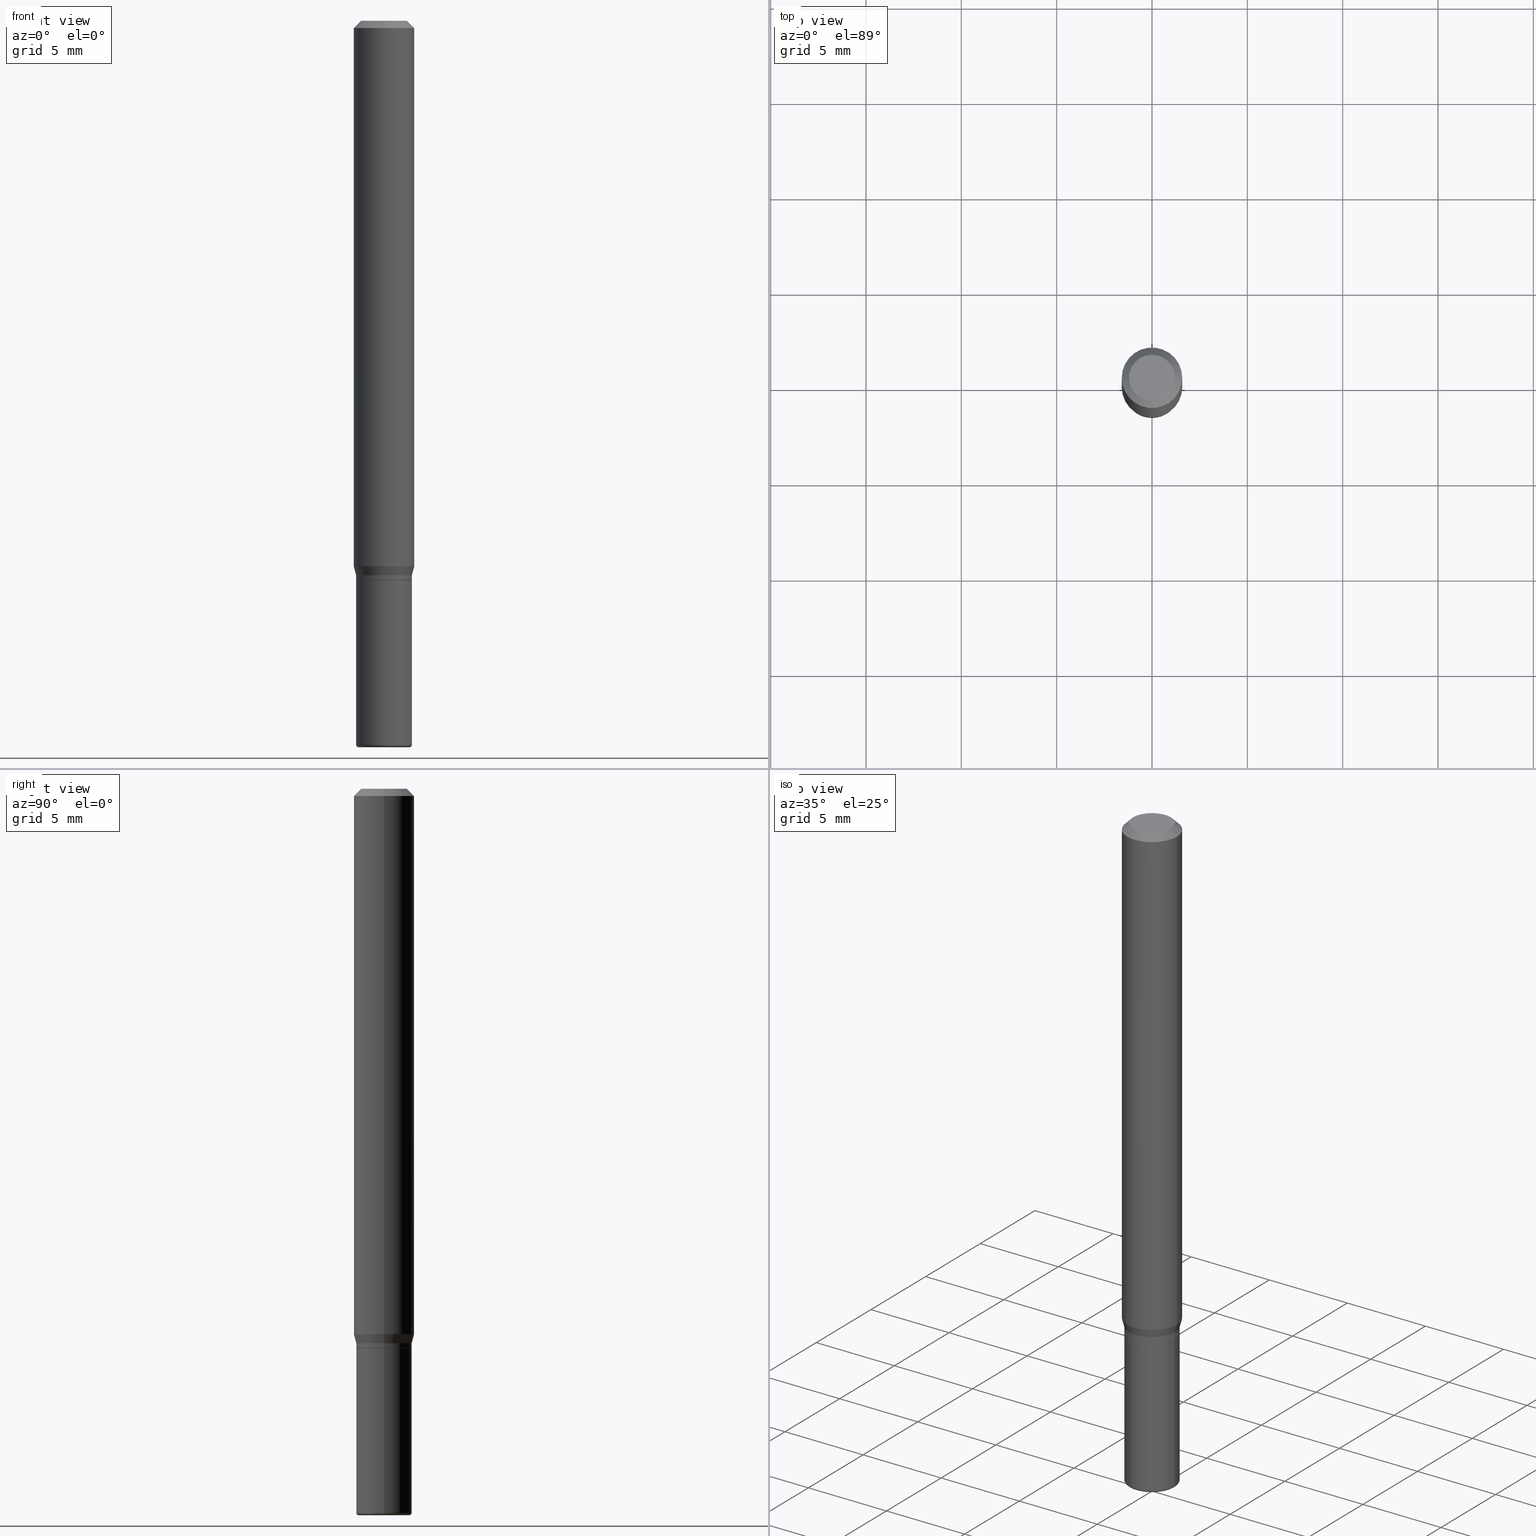
[diagram: canonical four-view strip — front | top / right | iso, engineering-drawing reading convention]
A machine part, canonical four-view strip (front | top / right | iso — engineering-drawing reading convention). The complete STEP part file that produces these views, byte-faithful:
ISO-10303-21;
HEADER;
FILE_DESCRIPTION (( 'STEP AP203' ),
    '1' );
FILE_NAME ('09247.STEP',
    '2024-02-29T23:57:34',
    ( '' ),
    ( '' ),
    'SwSTEP 2.0',
    'SolidWorks 2023',
    '' );
FILE_SCHEMA (( 'CONFIG_CONTROL_DESIGN' ));
ENDSEC;

DATA;
#1 = CARTESIAN_POINT ( 'NONE',  ( 0.000000000000000000, 0.000000000000000000, 0.000000000000000000 ) ) ;
#2 = DIRECTION ( 'NONE',  ( 1.000000000000000000, 0.000000000000000000, 0.000000000000000000 ) ) ;
#3 = CIRCLE ( 'NONE', #64, 0.05750000000000000250 ) ;
#4 = DIRECTION ( 'NONE',  ( 2.438088387897960049E-29, -3.491481338843145188E-15, -1.000000000000000000 ) ) ;
#5 = DIRECTION ( 'NONE',  ( -1.000000000000000000, 6.982962677686266711E-15, 0.000000000000000000 ) ) ;
#6 = EDGE_LOOP ( 'NONE', ( #207, #223, #396, #106 ) ) ;
#7 = DIRECTION ( 'NONE',  ( -0.2588190451025201844, 5.211531920934542364E-15, 0.9659258262890684232 ) ) ;
#8 = EDGE_LOOP ( 'NONE', ( #436, #42, #502, #92 ) ) ;
#9 = ADVANCED_FACE ( 'NONE', ( #291 ), #194, .T. ) ;
#10 = CARTESIAN_POINT ( 'NONE',  ( 2.824516471143833307E-29, -4.032660946363833383E-15, -1.155000000000000027 ) ) ;
#11 = PERSON_AND_ORGANIZATION_ROLE ( 'creator' ) ;
#12 = CARTESIAN_POINT ( 'NONE',  ( 2.823293736740741066E-29, -4.030915205694411879E-15, -1.154500000000000304 ) ) ;
#13 = DIRECTION ( 'NONE',  ( 1.000000000000000000, -6.982962677686268288E-15, 4.883557194083113462E-29 ) ) ;
#14 = DIRECTION ( 'NONE',  ( -2.445468806185136597E-29, 3.491481338843145583E-15, 1.000000000000000000 ) ) ;
#15 = AXIS2_PLACEMENT_3D ( 'NONE', #337, #335, #13 ) ;
#16 = AXIS2_PLACEMENT_3D ( 'NONE', #409, #14, #127 ) ;
#17 = DIRECTION ( 'NONE',  ( 2.438088387897960049E-29, -3.491481338843145188E-15, -1.000000000000000000 ) ) ;
#18 = DIRECTION ( 'NONE',  ( 1.000000000000000000, -6.982962677686271444E-15, 0.000000000000000000 ) ) ;
#19 = ORIENTED_EDGE ( 'NONE', *, *, #305, .F. ) ;
#20 = ORIENTED_EDGE ( 'NONE', *, *, #377, .T. ) ;
#21 = DIRECTION ( 'NONE',  ( 2.445468806185136597E-29, -3.491481338843145583E-15, -1.000000000000000000 ) ) ;
#22 = DIRECTION ( 'NONE',  ( -2.445468806185136597E-29, 3.491481338843145583E-15, 1.000000000000000000 ) ) ;
#23 = VECTOR ( 'NONE', #89, 39.37007874015748143 ) ;
#24 = CARTESIAN_POINT ( 'NONE',  ( 3.668203209277706016E-29, -5.237222008264719754E-15, -1.500000000000000444 ) ) ;
#25 = EDGE_CURVE ( 'NONE', #54, #464, #175, .T. ) ;
#26 = CONICAL_SURFACE ( 'NONE', #185, 0.05700000000000008532, 0.7853981633975507526 ) ;
#27 = CIRCLE ( 'NONE', #382, 0.05700000000000008532 ) ;
#28 = ORIENTED_EDGE ( 'NONE', *, *, #149, .F. ) ;
#29 = ORIENTED_EDGE ( 'NONE', *, *, #25, .F. ) ;
#30 = DIRECTION ( 'NONE',  ( -2.438088387897960049E-29, 3.491481338843145188E-15, 1.000000000000000000 ) ) ;
#31 = PERSON_AND_ORGANIZATION_ROLE ( 'classification_officer' ) ;
#32 = AXIS2_PLACEMENT_3D ( 'NONE', #452, #17, #51 ) ;
#33 = LOCAL_TIME ( 18, 57, 34.00000000000000000, #170 ) ;
#34 = ORIENTED_EDGE ( 'NONE', *, *, #70, .F. ) ;
#35 =( LENGTH_UNIT ( ) NAMED_UNIT ( * ) SI_UNIT ( $, .METRE. ) );
#36 = CARTESIAN_POINT ( 'NONE',  ( -0.05750000000000005801, -3.589184059913344947E-15, -1.145000000000000462 ) ) ;
#37 = PERSON_AND_ORGANIZATION ( #234, #84 ) ;
#38 = DIRECTION ( 'NONE',  ( -2.438088387897960049E-29, 3.491481338843145188E-15, 1.000000000000000000 ) ) ;
#39 = DIRECTION ( 'NONE',  ( -2.445468806185136597E-29, 3.491481338843145583E-15, 1.000000000000000000 ) ) ;
#40 = EDGE_CURVE ( 'NONE', #399, #308, #246, .T. ) ;
#41 =( NAMED_UNIT ( * ) SI_UNIT ( $, .STERADIAN. ) SOLID_ANGLE_UNIT ( ) );
#42 = ORIENTED_EDGE ( 'NONE', *, *, #187, .F. ) ;
#43 = CLOSED_SHELL ( 'NONE', ( #9, #492, #93, #505, #265, #261 ) ) ;
#44 = AXIS2_PLACEMENT_3D ( 'NONE', #378, #101, #375 ) ;
#45 = CARTESIAN_POINT ( 'NONE',  ( 0.000000000000000000, 0.000000000000000000, 0.000000000000000000 ) ) ;
#46 = DATE_AND_TIME ( #120, #33 ) ;
#47 = EDGE_LOOP ( 'NONE', ( #180, #507, #231, #79 ) ) ;
#48 = DIRECTION ( 'NONE',  ( 1.000000000000000000, -6.982962677686266711E-15, 0.000000000000000000 ) ) ;
#49 = DIRECTION ( 'NONE',  ( -2.445468806185136597E-29, 3.491481338843145583E-15, 1.000000000000000000 ) ) ;
#50 = CONICAL_SURFACE ( 'NONE', #116, 0.06250000000000000000, 0.7853981633974488341 ) ;
#51 = DIRECTION ( 'NONE',  ( -1.000000000000000000, 6.982962677686265922E-15, -4.876176775795935793E-29 ) ) ;
#52 = VERTEX_POINT ( 'NONE', #135 ) ;
#53 = CC_DESIGN_DATE_AND_TIME_ASSIGNMENT ( #46, #365, ( #213 ) ) ;
#54 = VERTEX_POINT ( 'NONE', #292 ) ;
#55 = DIRECTION ( 'NONE',  ( 1.000000000000000000, -6.982962677686267499E-15, 0.000000000000000000 ) ) ;
#56 = ADVANCED_FACE ( 'NONE', ( #344 ), #141, .T. ) ;
#57 = VECTOR ( 'NONE', #125, 39.37007874015748143 ) ;
#58 = EDGE_CURVE ( 'NONE', #510, #471, #348, .T. ) ;
#59 = CYLINDRICAL_SURFACE ( 'NONE', #210, 0.05750000000000007189 ) ;
#60 = APPROVAL_PERSON_ORGANIZATION ( #329, #133, #78 ) ;
#61 = EDGE_LOOP ( 'NONE', ( #376, #229, #391, #418 ) ) ;
#62 = EDGE_CURVE ( 'NONE', #471, #161, #326, .T. ) ;
#63 = ORIENTED_EDGE ( 'NONE', *, *, #477, .T. ) ;
#64 = AXIS2_PLACEMENT_3D ( 'NONE', #388, #147, #150 ) ;
#65 = AXIS2_PLACEMENT_3D ( 'NONE', #404, #412, #48 ) ;
#66 = DIRECTION ( 'NONE',  ( -1.000000000000000000, 6.982962677686265922E-15, -4.876176775795935793E-29 ) ) ;
#67 = ORIENTED_EDGE ( 'NONE', *, *, #187, .T. ) ;
#68 = MANIFOLD_SOLID_BREP ( 'Body-Move/Copy2[2]', #451 ) ;
#69 = ORIENTED_EDGE ( 'NONE', *, *, #233, .T. ) ;
#70 = EDGE_CURVE ( 'NONE', #510, #54, #142, .T. ) ;
#71 = CONICAL_SURFACE ( 'NONE', #104, 0.05750000000000005801, 0.2617993877991488527 ) ;
#72 = CALENDAR_DATE ( 2024, 29, 2 ) ;
#73 = VECTOR ( 'NONE', #103, 39.37007874015748143 ) ;
#74 = APPROVAL_PERSON_ORGANIZATION ( #516, #138, #77 ) ;
#75 = CARTESIAN_POINT ( 'NONE',  ( 3.655975865246779122E-29, -5.219764601570503141E-15, -1.495000000000000107 ) ) ;
#76 = ORIENTED_EDGE ( 'NONE', *, *, #58, .T. ) ;
#77 = APPROVAL_ROLE ( '' ) ;
#78 = APPROVAL_ROLE ( '' ) ;
#79 = ORIENTED_EDGE ( 'NONE', *, *, #472, .F. ) ;
#80 = EDGE_CURVE ( 'NONE', #272, #510, #86, .T. ) ;
#81 = CARTESIAN_POINT ( 'NONE',  ( 0.06250000000000000000, -4.811533449433669144E-16, -0.01499999999999970281 ) ) ;
#82 = CARTESIAN_POINT ( 'NONE',  ( 0.000000000000000000, 0.000000000000000000, 0.000000000000000000 ) ) ;
#83 = AXIS2_PLACEMENT_3D ( 'NONE', #255, #97, #411 ) ;
#84 = ORGANIZATION ( 'UNSPECIFIED', 'UNSPECIFIED', '' ) ;
#85 = DIRECTION ( 'NONE',  ( -0.7071067811866199593, 7.493145998870616062E-15, 0.7071067811864750752 ) ) ;
#86 = LINE ( 'NONE', #408, #95 ) ;
#87 = EDGE_CURVE ( 'NONE', #308, #331, #368, .T. ) ;
#88 = DIRECTION ( 'NONE',  ( -2.445468806185136597E-29, 3.491481338843145583E-15, 1.000000000000000000 ) ) ;
#89 = DIRECTION ( 'NONE',  ( 0.7071067811866199593, -2.468850131083015945E-15, 0.7071067811864750752 ) ) ;
#90 = ORIENTED_EDGE ( 'NONE', *, *, #193, .T. ) ;
#91 = CARTESIAN_POINT ( 'NONE',  ( -0.04750000000000000749, 3.578768372314221353E-16, 2.731847993664239060E-16 ) ) ;
#92 = ORIENTED_EDGE ( 'NONE', *, *, #497, .T. ) ;
#93 = ADVANCED_FACE ( 'NONE', ( #413 ), #334, .F. ) ;
#94 = ORIENTED_EDGE ( 'NONE', *, *, #111, .F. ) ;
#95 = VECTOR ( 'NONE', #203, 39.37007874015748143 ) ;
#96 = AXIS2_PLACEMENT_3D ( 'NONE', #12, #317, #129 ) ;
#97 = DIRECTION ( 'NONE',  ( -2.445468806185136597E-29, 3.491481338843145583E-15, 1.000000000000000000 ) ) ;
#98 = VERTEX_POINT ( 'NONE', #182 ) ;
#99 = FACE_OUTER_BOUND ( 'NONE', #8, .T. ) ;
#100 = DIRECTION ( 'NONE',  ( 1.000000000000000000, -6.982962677686271444E-15, 0.000000000000000000 ) ) ;
#101 = DIRECTION ( 'NONE',  ( -2.445468806185136597E-29, 3.491481338843145583E-15, 1.000000000000000000 ) ) ;
#102 = ADVANCED_FACE ( 'NONE', ( #212 ), #353, .T. ) ;
#103 = DIRECTION ( 'NONE',  ( -2.445468806185136877E-29, 3.491481338843145188E-15, 1.000000000000000000 ) ) ;
#104 = AXIS2_PLACEMENT_3D ( 'NONE', #217, #220, #383 ) ;
#105 = AXIS2_PLACEMENT_3D ( 'NONE', #402, #38, #168 ) ;
#106 = ORIENTED_EDGE ( 'NONE', *, *, #233, .F. ) ;
#107 = ORIENTED_EDGE ( 'NONE', *, *, #162, .F. ) ;
#108 = EDGE_LOOP ( 'NONE', ( #438, #489, #148, #406 ) ) ;
#109 = ORIENTED_EDGE ( 'NONE', *, *, #497, .F. ) ;
#110 = DIRECTION ( 'NONE',  ( -2.445468806185136597E-29, 3.491481338843145583E-15, 1.000000000000000000 ) ) ;
#111 = EDGE_CURVE ( 'NONE', #464, #471, #225, .T. ) ;
#112 = EDGE_LOOP ( 'NONE', ( #200, #389 ) ) ;
#113 = PERSON_AND_ORGANIZATION ( #234, #84 ) ;
#114 = AXIS2_PLACEMENT_3D ( 'NONE', #390, #30, #515 ) ;
#115 = APPROVAL_DATE_TIME ( #323, #133 ) ;
#116 = AXIS2_PLACEMENT_3D ( 'NONE', #367, #362, #5 ) ;
#117 = CARTESIAN_POINT ( 'NONE',  ( 2.824516471143833307E-29, -4.032660946363833383E-15, -1.155000000000000027 ) ) ;
#118 = FACE_OUTER_BOUND ( 'NONE', #349, .T. ) ;
#119 = DIRECTION ( 'NONE',  ( 1.000000000000000000, -6.982962677686265922E-15, 4.876176775795935793E-29 ) ) ;
#120 = CALENDAR_DATE ( 2024, 29, 2 ) ;
#121 = APPROVAL ( #394, 'UNSPECIFIED' ) ;
#122 = FACE_OUTER_BOUND ( 'NONE', #425, .T. ) ;
#123 = CARTESIAN_POINT ( 'NONE',  ( 0.05750000000000018291, -5.621284955537464739E-15, -1.495000000000000107 ) ) ;
#124 = ORIENTED_EDGE ( 'NONE', *, *, #514, .F. ) ;
#125 = DIRECTION ( 'NONE',  ( -2.445468806185136877E-29, 3.491481338843145188E-15, 1.000000000000000000 ) ) ;
#126 = MECHANICAL_CONTEXT ( 'NONE', #156, 'mechanical' ) ;
#127 = DIRECTION ( 'NONE',  ( 1.000000000000000000, -6.982962677686266711E-15, 4.876176775795935793E-29 ) ) ;
#128 = AXIS2_PLACEMENT_3D ( 'NONE', #296, #454, #100 ) ;
#129 = DIRECTION ( 'NONE',  ( 1.000000000000000000, -6.982962677686263555E-15, 0.000000000000000000 ) ) ;
#130 = DIRECTION ( 'NONE',  ( -2.445468806185136877E-29, 3.491481338843145188E-15, 1.000000000000000000 ) ) ;
#131 = FACE_OUTER_BOUND ( 'NONE', #6, .T. ) ;
#132 = VERTEX_POINT ( 'NONE', #506 ) ;
#133 = APPROVAL ( #481, 'UNSPECIFIED' ) ;
#134 = EDGE_LOOP ( 'NONE', ( #318, #160, #468, #214 ) ) ;
#135 = CARTESIAN_POINT ( 'NONE',  ( 0.05700000000000008532, -4.430689818991951185E-15, -1.155000000000000027 ) ) ;
#136 = CIRCLE ( 'NONE', #421, 0.05250000000000000500 ) ;
#137 = CIRCLE ( 'NONE', #211, 0.05750000000000000250 ) ;
#138 = APPROVAL ( #159, 'UNSPECIFIED' ) ;
#139 = ORIENTED_EDGE ( 'NONE', *, *, #377, .F. ) ;
#140 = LINE ( 'NONE', #381, #73 ) ;
#141 = CYLINDRICAL_SURFACE ( 'NONE', #512, 0.06250000000000000000 ) ;
#142 = CIRCLE ( 'NONE', #302, 0.05750000000000005801 ) ;
#143 = UNCERTAINTY_MEASURE_WITH_UNIT (LENGTH_MEASURE( 1.000000000000000082E-05 ), #509, 'distance_accuracy_value', 'NONE');
#144 = CARTESIAN_POINT ( 'NONE',  ( -0.06250000000000000000, 3.840629472727455270E-16, -0.01499999999999970281 ) ) ;
#145 = AXIS2_PLACEMENT_3D ( 'NONE', #433, #4, #66 ) ;
#146 = CC_DESIGN_APPROVAL ( #138, ( #236 ) ) ;
#147 = DIRECTION ( 'NONE',  ( -2.445468806185136597E-29, 3.491481338843145583E-15, 1.000000000000000000 ) ) ;
#148 = ORIENTED_EDGE ( 'NONE', *, *, #343, .T. ) ;
#149 = EDGE_CURVE ( 'NONE', #331, #511, #3, .T. ) ;
#150 = DIRECTION ( 'NONE',  ( 1.000000000000000000, -6.982962677686273810E-15, 0.000000000000000000 ) ) ;
#151 = CARTESIAN_POINT ( 'NONE',  ( 2.800061783081982883E-29, -3.997746132975403311E-15, -1.145000000000000462 ) ) ;
#152 = DIRECTION ( 'NONE',  ( 1.000000000000000000, -6.982962677686268288E-15, 0.000000000000000000 ) ) ;
#153 = ORIENTED_EDGE ( 'NONE', *, *, #333, .F. ) ;
#154 = VECTOR ( 'NONE', #221, 39.37007874015748143 ) ;
#155 = EDGE_CURVE ( 'NONE', #266, #161, #461, .T. ) ;
#156 = APPLICATION_CONTEXT ( 'configuration controlled 3d designs of mechanical parts and assemblies' ) ;
#157 = EDGE_LOOP ( 'NONE', ( #341, #358, #63, #109 ) ) ;
#158 = DIRECTION ( 'NONE',  ( 1.000000000000000000, -6.982962677686273810E-15, 0.000000000000000000 ) ) ;
#159 = APPROVAL_STATUS ( 'not_yet_approved' ) ;
#160 = ORIENTED_EDGE ( 'NONE', *, *, #62, .T. ) ;
#161 = VERTEX_POINT ( 'NONE', #351 ) ;
#162 = EDGE_CURVE ( 'NONE', #320, #399, #432, .T. ) ;
#163 = CARTESIAN_POINT ( 'NONE',  ( 2.824516471143833307E-29, -4.032660946363833383E-15, -1.155000000000000027 ) ) ;
#164 = APPLICATION_PROTOCOL_DEFINITION ( 'international standard', 'config_control_design', 1994, #156 ) ;
#165 = AXIS2_PLACEMENT_3D ( 'NONE', #379, #21, #264 ) ;
#166 = PRODUCT_DEFINITION_SHAPE ( 'NONE', 'NONE',  #213 ) ;
#167 = CARTESIAN_POINT ( 'NONE',  ( -0.05700000000000008532, -3.627651586980575917E-15, -1.155000000000000027 ) ) ;
#168 = DIRECTION ( 'NONE',  ( 1.000000000000000000, -6.982962677686265922E-15, 4.876176775795935793E-29 ) ) ;
#169 = DIRECTION ( 'NONE',  ( -2.445468806185136597E-29, 3.491481338843145583E-15, 1.000000000000000000 ) ) ;
#170 = COORDINATED_UNIVERSAL_TIME_OFFSET ( 5, 0, .BEHIND. ) ;
#171 = EDGE_LOOP ( 'NONE', ( #67, #189 ) ) ;
#172 = DIRECTION ( 'NONE',  ( 1.000000000000000000, -6.982962677686274599E-15, 0.000000000000000000 ) ) ;
#173 = CARTESIAN_POINT ( 'NONE',  ( 0.05750000000000008576, -4.015203539669609078E-16, 2.803801646082667145E-30 ) ) ;
#174 = PERSON_AND_ORGANIZATION_ROLE ( 'design_supplier' ) ;
#175 = LINE ( 'NONE', #183, #345 ) ;
#176 = LINE ( 'NONE', #486, #312 ) ;
#177 = AXIS2_PLACEMENT_3D ( 'NONE', #499, #88, #336 ) ;
#178 = ADVANCED_FACE ( 'NONE', ( #258 ), #59, .T. ) ;
#179 = CONICAL_SURFACE ( 'NONE', #165, 0.06250000000000000000, 0.7853981633974488341 ) ;
#180 = ORIENTED_EDGE ( 'NONE', *, *, #384, .F. ) ;
#181 = ADVANCED_FACE ( 'NONE', ( #455 ), #71, .T. ) ;
#182 = CARTESIAN_POINT ( 'NONE',  ( 0.06250000000000000000, -4.888073874380378612E-16, -0.01499999999999970281 ) ) ;
#183 = CARTESIAN_POINT ( 'NONE',  ( 0.05750000000000005801, -4.399266486942364120E-15, -1.145000000000000462 ) ) ;
#184 = DIRECTION ( 'NONE',  ( -2.445468806185136597E-29, 3.491481338843145583E-15, 1.000000000000000000 ) ) ;
#185 = AXIS2_PLACEMENT_3D ( 'NONE', #10, #49, #18 ) ;
#186 = DIRECTION ( 'NONE',  ( 1.000000000000000000, -6.982962677686262766E-15, 0.000000000000000000 ) ) ;
#187 = EDGE_CURVE ( 'NONE', #266, #132, #444, .T. ) ;
#188 = CARTESIAN_POINT ( 'NONE',  ( 2.754428713916944301E-29, -3.932594204224198197E-15, -1.126339745962156247 ) ) ;
#189 = ORIENTED_EDGE ( 'NONE', *, *, #357, .T. ) ;
#190 = AXIS2_PLACEMENT_3D ( 'NONE', #256, #338, #419 ) ;
#191 = ORIENTED_EDGE ( 'NONE', *, *, #196, .F. ) ;
#192 = AXIS2_PLACEMENT_3D ( 'NONE', #405, #393, #216 ) ;
#193 = EDGE_CURVE ( 'NONE', #399, #320, #136, .T. ) ;
#194 = TOROIDAL_SURFACE ( 'NONE', #15, 0.05250000000000000500, 0.005000000000000177046 ) ;
#195 = COORDINATED_UNIVERSAL_TIME_OFFSET ( 5, 0, .BEHIND. ) ;
#196 = EDGE_CURVE ( 'NONE', #280, #54, #140, .T. ) ;
#197 = DATE_AND_TIME ( #72, #372 ) ;
#198 = EDGE_CURVE ( 'NONE', #471, #464, #301, .T. ) ;
#199 = TOROIDAL_SURFACE ( 'NONE', #339, 0.05250000000000000500, 0.005000000000000177046 ) ;
#200 = ORIENTED_EDGE ( 'NONE', *, *, #222, .F. ) ;
#201 = VECTOR ( 'NONE', #243, 39.37007874015748143 ) ;
#202 = DIRECTION ( 'NONE',  ( 1.000000000000000000, -6.982962677686268288E-15, 0.000000000000000000 ) ) ;
#203 = DIRECTION ( 'NONE',  ( -2.445468806185136877E-29, 3.491481338843145188E-15, 1.000000000000000000 ) ) ;
#204 = COORDINATED_UNIVERSAL_TIME_OFFSET ( 5, 0, .BEHIND. ) ;
#205 = LINE ( 'NONE', #448, #23 ) ;
#206 = LINE ( 'NONE', #167, #496 ) ;
#207 = ORIENTED_EDGE ( 'NONE', *, *, #218, .F. ) ;
#208 = CC_DESIGN_PERSON_AND_ORGANIZATION_ASSIGNMENT ( #37, #479, ( #213 ) ) ;
#209 = CARTESIAN_POINT ( 'NONE',  ( -0.05700000000000008532, -3.625002359806464716E-15, -1.155000000000000027 ) ) ;
#210 = AXIS2_PLACEMENT_3D ( 'NONE', #498, #299, #420 ) ;
#211 = AXIS2_PLACEMENT_3D ( 'NONE', #117, #230, #158 ) ;
#212 = FACE_OUTER_BOUND ( 'NONE', #47, .T. ) ;
#213 = PRODUCT_DEFINITION ( 'UNKNOWN', '', #332, #476 ) ;
#214 = ORIENTED_EDGE ( 'NONE', *, *, #477, .F. ) ;
#215 = CARTESIAN_POINT ( 'NONE',  ( 0.05750000000000008576, -4.432435559661373477E-15, -1.154500000000000304 ) ) ;
#216 = DIRECTION ( 'NONE',  ( 1.000000000000000000, -6.982962677686266711E-15, 0.000000000000000000 ) ) ;
#217 = CARTESIAN_POINT ( 'NONE',  ( 2.800061783081982883E-29, -3.997746132975403311E-15, -1.145000000000000462 ) ) ;
#218 = EDGE_CURVE ( 'NONE', #320, #242, #457, .T. ) ;
#219 = AXIS2_PLACEMENT_3D ( 'NONE', #45, #282, #443 ) ;
#220 = DIRECTION ( 'NONE',  ( -2.445468806185136597E-29, 3.491481338843145583E-15, 1.000000000000000000 ) ) ;
#221 = DIRECTION ( 'NONE',  ( -2.445468806185136877E-29, 3.491481338843145188E-15, 1.000000000000000000 ) ) ;
#222 = EDGE_CURVE ( 'NONE', #52, #354, #426, .T. ) ;
#223 = ORIENTED_EDGE ( 'NONE', *, *, #162, .T. ) ;
#224 = DIRECTION ( 'NONE',  ( 1.000000000000000000, -6.982962677686266711E-15, 4.876176775795935793E-29 ) ) ;
#225 = CIRCLE ( 'NONE', #83, 0.06250000000000000000 ) ;
#226 = ORIENTED_EDGE ( 'NONE', *, *, #196, .T. ) ;
#227 = ADVANCED_BREP_SHAPE_REPRESENTATION ( '09247', ( #262, #68, #371 ), #253 ) ;
#228 = DIRECTION ( 'NONE',  ( -0.7071067811865479058, 2.468850131082261005E-15, -0.7071067811865471286 ) ) ;
#229 = ORIENTED_EDGE ( 'NONE', *, *, #384, .T. ) ;
#230 = DIRECTION ( 'NONE',  ( -2.445468806185136597E-29, 3.491481338843145583E-15, 1.000000000000000000 ) ) ;
#231 = ORIENTED_EDGE ( 'NONE', *, *, #424, .T. ) ;
#232 = DIRECTION ( 'NONE',  ( -2.445468806185136597E-29, 3.491481338843145583E-15, 1.000000000000000000 ) ) ;
#233 = EDGE_CURVE ( 'NONE', #242, #308, #501, .T. ) ;
#234 = PERSON ( 'UNSPECIFIED', 'UNSPECIFIED', 'UNSPECIFIED', ('UNSPECIFIED'), ('UNSPECIFIED'), ('UNSPECIFIED') ) ;
#235 = AXIS2_PLACEMENT_3D ( 'NONE', #297, #435, #352 ) ;
#236 = SECURITY_CLASSIFICATION ( '', '', #398 ) ;
#237 = APPROVAL_DATE_TIME ( #197, #138 ) ;
#238 = CARTESIAN_POINT ( 'NONE',  ( -6.680649051745406845E-45, 9.538196290434862081E-31, 2.731847993664263218E-16 ) ) ;
#239 = PLANE ( 'NONE',  #105 ) ;
#240 = PRODUCT ( '09247', '09247', '', ( #126 ) ) ;
#241 = CALENDAR_DATE ( 2024, 29, 2 ) ;
#242 = VERTEX_POINT ( 'NONE', #403 ) ;
#243 = DIRECTION ( 'NONE',  ( 0.7071067811865479058, -7.319954787623257623E-15, -0.7071067811865471286 ) ) ;
#244 = DIRECTION ( 'NONE',  ( -2.445468806185136597E-29, 3.491481338843145583E-15, 1.000000000000000000 ) ) ;
#245 = DIRECTION ( 'NONE',  ( 1.000000000000000000, -6.982962677686274599E-15, 0.000000000000000000 ) ) ;
#246 = CIRCLE ( 'NONE', #260, 0.005000000000000177046 ) ;
#247 = CONICAL_SURFACE ( 'NONE', #294, 0.05750000000000005801, 0.2617993877991488527 ) ;
#248 = CARTESIAN_POINT ( 'NONE',  ( 0.06250000000000000000, -4.369029371579589866E-15, -1.126339745962156247 ) ) ;
#249 = FACE_OUTER_BOUND ( 'NONE', #108, .T. ) ;
#250 = DIRECTION ( 'NONE',  ( -2.445468806185136877E-29, 3.491481338843145188E-15, 1.000000000000000000 ) ) ;
#251 = CARTESIAN_POINT ( 'NONE',  ( -0.05750000000000008576, -3.622353132632354304E-15, -1.154500000000000304 ) ) ;
#252 = CARTESIAN_POINT ( 'NONE',  ( 3.655975865246779122E-29, -5.219764601570503141E-15, -1.495000000000000107 ) ) ;
#253 =( GEOMETRIC_REPRESENTATION_CONTEXT ( 3 ) GLOBAL_UNCERTAINTY_ASSIGNED_CONTEXT ( ( #143 ) ) GLOBAL_UNIT_ASSIGNED_CONTEXT ( ( #509, #385, #41 ) ) REPRESENTATION_CONTEXT ( 'NONE', 'WORKASPACE' ) );
#254 = FACE_OUTER_BOUND ( 'NONE', #440, .T. ) ;
#255 = CARTESIAN_POINT ( 'NONE',  ( 2.754428713916944301E-29, -3.932594204224198197E-15, -1.126339745962156247 ) ) ;
#256 = CARTESIAN_POINT ( 'NONE',  ( -6.680649051745406845E-45, 9.538196290434862081E-31, 2.731847993664263218E-16 ) ) ;
#257 = EDGE_LOOP ( 'NONE', ( #487, #490, #28, #366 ) ) ;
#258 = FACE_OUTER_BOUND ( 'NONE', #315, .T. ) ;
#259 = LENGTH_MEASURE_WITH_UNIT ( LENGTH_MEASURE( 0.02539999999999999897 ), #35 );
#260 = AXIS2_PLACEMENT_3D ( 'NONE', #494, #491, #373 ) ;
#261 = ADVANCED_FACE ( 'NONE', ( #118 ), #271, .F. ) ;
#262 = MANIFOLD_SOLID_BREP ( 'Body-Move/Copy2[1]', #43 ) ;
#263 = EDGE_LOOP ( 'NONE', ( #20, #76, #94, #29 ) ) ;
#264 = DIRECTION ( 'NONE',  ( -1.000000000000000000, 6.982962677686266711E-15, 0.000000000000000000 ) ) ;
#265 = ADVANCED_FACE ( 'NONE', ( #131 ), #199, .T. ) ;
#266 = VERTEX_POINT ( 'NONE', #91 ) ;
#267 = CIRCLE ( 'NONE', #192, 0.06250000000000000000 ) ;
#268 = CARTESIAN_POINT ( 'NONE',  ( 0.06250000000000000000, -4.364351673553916694E-16, 3.047610484872459871E-30 ) ) ;
#269 = ORIENTED_EDGE ( 'NONE', *, *, #472, .T. ) ;
#270 = DIRECTION ( 'NONE',  ( 1.000000000000000000, -6.982962677686274599E-15, 0.000000000000000000 ) ) ;
#271 = PLANE ( 'NONE',  #114 ) ;
#272 = VERTEX_POINT ( 'NONE', #251 ) ;
#273 = CALENDAR_DATE ( 2024, 29, 2 ) ;
#274 = ORIENTED_EDGE ( 'NONE', *, *, #218, .T. ) ;
#275 = PERSON_AND_ORGANIZATION ( #234, #84 ) ;
#276 = AXIS2_PLACEMENT_3D ( 'NONE', #75, #39, #152 ) ;
#277 = CC_DESIGN_SECURITY_CLASSIFICATION ( #236, ( #332 ) ) ;
#278 = COORDINATED_UNIVERSAL_TIME_OFFSET ( 5, 0, .BEHIND. ) ;
#279 = FACE_OUTER_BOUND ( 'NONE', #112, .T. ) ;
#280 = VERTEX_POINT ( 'NONE', #215 ) ;
#281 = DIRECTION ( 'NONE',  ( -2.445468806185136597E-29, 3.491481338843145583E-15, 1.000000000000000000 ) ) ;
#282 = DIRECTION ( 'NONE',  ( -2.445468806185136597E-29, 3.491481338843145583E-15, 1.000000000000000000 ) ) ;
#283 = CARTESIAN_POINT ( 'NONE',  ( 2.800061783081982883E-29, -3.997746132975403311E-15, -1.145000000000000462 ) ) ;
#284 = CARTESIAN_POINT ( 'NONE',  ( 2.800061783081982883E-29, -3.997746132975403311E-15, -1.145000000000000462 ) ) ;
#285 = APPROVAL_DATE_TIME ( #328, #121 ) ;
#286 = CARTESIAN_POINT ( 'NONE',  ( 0.05750000000000000250, -4.434181300330794192E-15, -1.155000000000000027 ) ) ;
#287 = VECTOR ( 'NONE', #7, 39.37007874015748143 ) ;
#288 = AXIS2_PLACEMENT_3D ( 'NONE', #459, #319, #313 ) ;
#289 = EDGE_LOOP ( 'NONE', ( #517, #311 ) ) ;
#290 = ADVANCED_FACE ( 'NONE', ( #493 ), #26, .T. ) ;
#291 = FACE_OUTER_BOUND ( 'NONE', #387, .T. ) ;
#292 = CARTESIAN_POINT ( 'NONE',  ( 0.05750000000000005801, -4.399266486942364120E-15, -1.145000000000000462 ) ) ;
#293 = VECTOR ( 'NONE', #250, 39.37007874015748143 ) ;
#294 = AXIS2_PLACEMENT_3D ( 'NONE', #283, #110, #270 ) ;
#295 = APPLICATION_CONTEXT ( 'configuration controlled 3d designs of mechanical parts and assemblies' ) ;
#296 = CARTESIAN_POINT ( 'NONE',  ( 2.824516471143833307E-29, -4.032660946363833383E-15, -1.155000000000000027 ) ) ;
#297 = CARTESIAN_POINT ( 'NONE',  ( 2.824516471143833307E-29, -4.032660946363833383E-15, -1.155000000000000027 ) ) ;
#298 = FACE_OUTER_BOUND ( 'NONE', #157, .T. ) ;
#299 = DIRECTION ( 'NONE',  ( -2.445468806185136597E-29, 3.491481338843145583E-15, 1.000000000000000000 ) ) ;
#300 = EDGE_CURVE ( 'NONE', #280, #272, #474, .T. ) ;
#301 = CIRCLE ( 'NONE', #330, 0.06250000000000000000 ) ;
#302 = AXIS2_PLACEMENT_3D ( 'NONE', #284, #445, #245 ) ;
#303 = LOCAL_TIME ( 18, 57, 34.00000000000000000, #195 ) ;
#304 = DIRECTION ( 'NONE',  ( -2.445468806185136597E-29, 3.491481338843145583E-15, 1.000000000000000000 ) ) ;
#305 = EDGE_CURVE ( 'NONE', #511, #331, #137, .T. ) ;
#306 = ORIENTED_EDGE ( 'NONE', *, *, #70, .T. ) ;
#307 = ADVANCED_FACE ( 'NONE', ( #279 ), #239, .F. ) ;
#308 = VERTEX_POINT ( 'NONE', #123 ) ;
#309 = CARTESIAN_POINT ( 'NONE',  ( -0.05750000000000005801, -3.538844527143739869E-15, -1.145000000000000462 ) ) ;
#310 = ADVANCED_FACE ( 'NONE', ( #469 ), #247, .T. ) ;
#311 = ORIENTED_EDGE ( 'NONE', *, *, #305, .T. ) ;
#312 = VECTOR ( 'NONE', #130, 39.37007874015748143 ) ;
#313 = DIRECTION ( 'NONE',  ( 1.000000000000000000, -6.982962677686263555E-15, 0.000000000000000000 ) ) ;
#314 = ORIENTED_EDGE ( 'NONE', *, *, #87, .T. ) ;
#315 = EDGE_LOOP ( 'NONE', ( #374, #269, #226, #34 ) ) ;
#316 = COORDINATED_UNIVERSAL_TIME_OFFSET ( 5, 0, .BEHIND. ) ;
#317 = DIRECTION ( 'NONE',  ( -2.445468806185136597E-29, 3.491481338843145583E-15, 1.000000000000000000 ) ) ;
#318 = ORIENTED_EDGE ( 'NONE', *, *, #111, .T. ) ;
#319 = DIRECTION ( 'NONE',  ( -2.445468806185136597E-29, 3.491481338843145583E-15, 1.000000000000000000 ) ) ;
#320 = VERTEX_POINT ( 'NONE', #386 ) ;
#321 = PERSON_AND_ORGANIZATION ( #234, #84 ) ;
#322 = ORIENTED_EDGE ( 'NONE', *, *, #40, .F. ) ;
#323 = DATE_AND_TIME ( #241, #422 ) ;
#324 = ADVANCED_FACE ( 'NONE', ( #298 ), #465, .T. ) ;
#325 = CARTESIAN_POINT ( 'NONE',  ( 0.05250000000000000500, -5.603827548843248915E-15, -1.500000000000000444 ) ) ;
#326 = LINE ( 'NONE', #480, #57 ) ;
#327 = DIRECTION ( 'NONE',  ( 1.000000000000000000, -6.982962677686266711E-15, 4.852736867747365086E-29 ) ) ;
#328 = DATE_AND_TIME ( #518, #434 ) ;
#329 = PERSON_AND_ORGANIZATION ( #234, #84 ) ;
#330 = AXIS2_PLACEMENT_3D ( 'NONE', #188, #184, #186 ) ;
#331 = VERTEX_POINT ( 'NONE', #286 ) ;
#332 = PRODUCT_DEFINITION_FORMATION_WITH_SPECIFIED_SOURCE ( 'ANY', '', #240, .NOT_KNOWN. ) ;
#333 = EDGE_CURVE ( 'NONE', #242, #511, #176, .T. ) ;
#334 = PLANE ( 'NONE',  #32 ) ;
#335 = DIRECTION ( 'NONE',  ( -2.445468806185136597E-29, 3.491481338843145583E-15, 1.000000000000000000 ) ) ;
#336 = DIRECTION ( 'NONE',  ( 1.000000000000000000, -6.982962677686267499E-15, 0.000000000000000000 ) ) ;
#337 = CARTESIAN_POINT ( 'NONE',  ( 3.655975865246779122E-29, -5.219764601570503141E-15, -1.495000000000000107 ) ) ;
#338 = DIRECTION ( 'NONE',  ( -2.445468806185136597E-29, 3.491481338843145583E-15, 1.000000000000000000 ) ) ;
#339 = AXIS2_PLACEMENT_3D ( 'NONE', #252, #447, #450 ) ;
#340 = EDGE_CURVE ( 'NONE', #354, #52, #27, .T. ) ;
#341 = ORIENTED_EDGE ( 'NONE', *, *, #62, .F. ) ;
#342 = CARTESIAN_POINT ( 'NONE',  ( -0.05250000000000000500, -4.846729665296450607E-15, -1.495000000000000107 ) ) ;
#343 = EDGE_CURVE ( 'NONE', #98, #161, #503, .T. ) ;
#344 = FACE_OUTER_BOUND ( 'NONE', #134, .T. ) ;
#345 = VECTOR ( 'NONE', #370, 39.37007874015748143 ) ;
#346 = CIRCLE ( 'NONE', #475, 0.05750000000000018291 ) ;
#347 = EDGE_LOOP ( 'NONE', ( #470, #306, #350, #423 ) ) ;
#348 = LINE ( 'NONE', #36, #287 ) ;
#349 = EDGE_LOOP ( 'NONE', ( #428, #107 ) ) ;
#350 = ORIENTED_EDGE ( 'NONE', *, *, #25, .T. ) ;
#351 = CARTESIAN_POINT ( 'NONE',  ( -0.06250000000000000000, -1.548394002303359430E-15, -0.01499999999999970281 ) ) ;
#352 = DIRECTION ( 'NONE',  ( 1.000000000000000000, -6.982962677686271444E-15, 0.000000000000000000 ) ) ;
#353 = CONICAL_SURFACE ( 'NONE', #128, 0.05700000000000008532, 0.7853981633975507526 ) ;
#354 = VERTEX_POINT ( 'NONE', #209 ) ;
#355 = AXIS2_PLACEMENT_3D ( 'NONE', #1, #232, #119 ) ;
#356 = DATE_TIME_ROLE ( 'classification_date' ) ;
#357 = EDGE_CURVE ( 'NONE', #132, #266, #364, .T. ) ;
#358 = ORIENTED_EDGE ( 'NONE', *, *, #198, .T. ) ;
#359 = SHAPE_DEFINITION_REPRESENTATION ( #166, #227 ) ;
#360 = PLANE ( 'NONE',  #145 ) ;
#361 = CARTESIAN_POINT ( 'NONE',  ( 3.655975865246779122E-29, -5.219764601570503141E-15, -1.495000000000000107 ) ) ;
#362 = DIRECTION ( 'NONE',  ( 2.445468806185136597E-29, -3.491481338843145583E-15, -1.000000000000000000 ) ) ;
#363 = VECTOR ( 'NONE', #228, 39.37007874015748143 ) ;
#364 = CIRCLE ( 'NONE', #467, 0.04750000000000000749 ) ;
#365 = DATE_TIME_ROLE ( 'creation_date' ) ;
#366 = ORIENTED_EDGE ( 'NONE', *, *, #87, .F. ) ;
#367 = CARTESIAN_POINT ( 'NONE',  ( 3.668203209277632395E-31, -5.237222008264614861E-17, -0.01499999999999970281 ) ) ;
#368 = LINE ( 'NONE', #173, #293 ) ;
#369 = APPROVAL_ROLE ( '' ) ;
#370 = DIRECTION ( 'NONE',  ( 0.2588190451025201844, 1.565188264969631237E-15, 0.9659258262890684232 ) ) ;
#371 = AXIS2_PLACEMENT_3D ( 'NONE', #82, #400, #2 ) ;
#372 = LOCAL_TIME ( 18, 57, 34.00000000000000000, #316 ) ;
#373 = DIRECTION ( 'NONE',  ( 1.000000000000000000, -6.982962677686280121E-15, 0.000000000000000000 ) ) ;
#374 = ORIENTED_EDGE ( 'NONE', *, *, #80, .F. ) ;
#375 = DIRECTION ( 'NONE',  ( 1.000000000000000000, -6.982962677686265922E-15, 4.876176775795935793E-29 ) ) ;
#376 = ORIENTED_EDGE ( 'NONE', *, *, #222, .T. ) ;
#377 = EDGE_CURVE ( 'NONE', #54, #510, #453, .T. ) ;
#378 = CARTESIAN_POINT ( 'NONE',  ( 0.000000000000000000, 0.000000000000000000, 0.000000000000000000 ) ) ;
#379 = CARTESIAN_POINT ( 'NONE',  ( 3.668203209277632395E-31, -5.237222008264614861E-17, -0.01499999999999970281 ) ) ;
#380 = ADVANCED_FACE ( 'NONE', ( #122 ), #407, .T. ) ;
#381 = CARTESIAN_POINT ( 'NONE',  ( 0.05750000000000007189, -4.015203539669608092E-16, 2.803801646082666444E-30 ) ) ;
#382 = AXIS2_PLACEMENT_3D ( 'NONE', #163, #169, #446 ) ;
#383 = DIRECTION ( 'NONE',  ( 1.000000000000000000, -6.982962677686274599E-15, 0.000000000000000000 ) ) ;
#384 = EDGE_CURVE ( 'NONE', #354, #272, #206, .T. ) ;
#385 =( NAMED_UNIT ( * ) PLANE_ANGLE_UNIT ( ) SI_UNIT ( $, .RADIAN. ) );
#386 = CARTESIAN_POINT ( 'NONE',  ( -0.05250000000000000500, -4.837694800249555210E-15, -1.500000000000000444 ) ) ;
#387 = EDGE_LOOP ( 'NONE', ( #90, #274, #124, #322 ) ) ;
#388 = CARTESIAN_POINT ( 'NONE',  ( 2.824516471143833307E-29, -4.032660946363833383E-15, -1.155000000000000027 ) ) ;
#389 = ORIENTED_EDGE ( 'NONE', *, *, #340, .F. ) ;
#390 = CARTESIAN_POINT ( 'NONE',  ( 3.582686580359767159E-29, -5.359686688179454114E-15, -1.500000000000000444 ) ) ;
#391 = ORIENTED_EDGE ( 'NONE', *, *, #300, .F. ) ;
#392 = ADVANCED_FACE ( 'NONE', ( #249 ), #50, .T. ) ;
#393 = DIRECTION ( 'NONE',  ( -2.445468806185136597E-29, 3.491481338843145583E-15, 1.000000000000000000 ) ) ;
#394 = APPROVAL_STATUS ( 'not_yet_approved' ) ;
#395 = AXIS2_PLACEMENT_3D ( 'NONE', #342, #456, #495 ) ;
#396 = ORIENTED_EDGE ( 'NONE', *, *, #40, .T. ) ;
#397 = APPROVAL_PERSON_ORGANIZATION ( #275, #121, #369 ) ;
#398 = SECURITY_CLASSIFICATION_LEVEL ( 'unclassified' ) ;
#399 = VERTEX_POINT ( 'NONE', #325 ) ;
#400 = DIRECTION ( 'NONE',  ( 0.000000000000000000, 0.000000000000000000, 1.000000000000000000 ) ) ;
#401 = CC_DESIGN_PERSON_AND_ORGANIZATION_ASSIGNMENT ( #113, #431, ( #240 ) ) ;
#402 = CARTESIAN_POINT ( 'NONE',  ( 2.824516471143833307E-29, -4.032660946363833383E-15, -1.155000000000000027 ) ) ;
#403 = CARTESIAN_POINT ( 'NONE',  ( -0.05750000000000016903, -4.217650700905109109E-15, -1.495000000000000107 ) ) ;
#404 = CARTESIAN_POINT ( 'NONE',  ( 3.668203209277632395E-31, -5.237222008264614861E-17, -0.01499999999999970281 ) ) ;
#405 = CARTESIAN_POINT ( 'NONE',  ( 3.668203209277632395E-31, -5.237222008264614861E-17, -0.01499999999999970281 ) ) ;
#406 = ORIENTED_EDGE ( 'NONE', *, *, #155, .F. ) ;
#407 = CYLINDRICAL_SURFACE ( 'NONE', #219, 0.05750000000000007189 ) ;
#408 = CARTESIAN_POINT ( 'NONE',  ( -0.05750000000000007189, 4.085620730620581177E-16, -2.828387676896574216E-30 ) ) ;
#409 = CARTESIAN_POINT ( 'NONE',  ( 0.000000000000000000, 0.000000000000000000, 0.000000000000000000 ) ) ;
#410 = FACE_OUTER_BOUND ( 'NONE', #171, .T. ) ;
#411 = DIRECTION ( 'NONE',  ( 1.000000000000000000, -6.982962677686262766E-15, 0.000000000000000000 ) ) ;
#412 = DIRECTION ( 'NONE',  ( -2.445468806185136597E-29, 3.491481338843145583E-15, 1.000000000000000000 ) ) ;
#413 = FACE_OUTER_BOUND ( 'NONE', #289, .T. ) ;
#414 = CIRCLE ( 'NONE', #96, 0.05750000000000008576 ) ;
#415 = EDGE_CURVE ( 'NONE', #132, #98, #439, .T. ) ;
#416 = CYLINDRICAL_SURFACE ( 'NONE', #44, 0.05750000000000008576 ) ;
#417 = CC_DESIGN_PERSON_AND_ORGANIZATION_ASSIGNMENT ( #321, #174, ( #332 ) ) ;
#418 = ORIENTED_EDGE ( 'NONE', *, *, #424, .F. ) ;
#419 = DIRECTION ( 'NONE',  ( 1.000000000000000000, -6.982962677686266711E-15, 4.852736867747365086E-29 ) ) ;
#420 = DIRECTION ( 'NONE',  ( 1.000000000000000000, -6.982962677686265922E-15, 4.876176775795935793E-29 ) ) ;
#421 = AXIS2_PLACEMENT_3D ( 'NONE', #24, #22, #55 ) ;
#422 = LOCAL_TIME ( 18, 57, 34.00000000000000000, #204 ) ;
#423 = ORIENTED_EDGE ( 'NONE', *, *, #198, .F. ) ;
#424 = EDGE_CURVE ( 'NONE', #52, #280, #205, .T. ) ;
#425 = EDGE_LOOP ( 'NONE', ( #504, #473, #139, #191 ) ) ;
#426 = CIRCLE ( 'NONE', #235, 0.05700000000000008532 ) ;
#427 = AXIS2_PLACEMENT_3D ( 'NONE', #151, #244, #172 ) ;
#428 = ORIENTED_EDGE ( 'NONE', *, *, #193, .F. ) ;
#429 = DATE_AND_TIME ( #273, #303 ) ;
#430 = LINE ( 'NONE', #268, #154 ) ;
#431 = PERSON_AND_ORGANIZATION_ROLE ( 'design_owner' ) ;
#432 = CIRCLE ( 'NONE', #177, 0.05250000000000000500 ) ;
#433 = CARTESIAN_POINT ( 'NONE',  ( 3.316907271900976589E-16, 0.04750000000000000749, -2.925296391183627249E-17 ) ) ;
#434 = LOCAL_TIME ( 18, 57, 34.00000000000000000, #278 ) ;
#435 = DIRECTION ( 'NONE',  ( -2.445468806185136597E-29, 3.491481338843145583E-15, 1.000000000000000000 ) ) ;
#436 = ORIENTED_EDGE ( 'NONE', *, *, #415, .F. ) ;
#437 = APPLICATION_PROTOCOL_DEFINITION ( 'international standard', 'config_control_design', 1994, #295 ) ;
#438 = ORIENTED_EDGE ( 'NONE', *, *, #357, .F. ) ;
#439 = LINE ( 'NONE', #81, #201 ) ;
#440 = EDGE_LOOP ( 'NONE', ( #153, #69, #314, #19 ) ) ;
#441 = CYLINDRICAL_SURFACE ( 'NONE', #355, 0.05750000000000008576 ) ;
#442 = PERSON_AND_ORGANIZATION ( #234, #84 ) ;
#443 = DIRECTION ( 'NONE',  ( 1.000000000000000000, -6.982962677686265922E-15, 4.876176775795935793E-29 ) ) ;
#444 = CIRCLE ( 'NONE', #190, 0.04750000000000000749 ) ;
#445 = DIRECTION ( 'NONE',  ( -2.445468806185136597E-29, 3.491481338843145583E-15, 1.000000000000000000 ) ) ;
#446 = DIRECTION ( 'NONE',  ( 1.000000000000000000, -6.982962677686271444E-15, 0.000000000000000000 ) ) ;
#447 = DIRECTION ( 'NONE',  ( -2.445468806185136597E-29, 3.491481338843145583E-15, 1.000000000000000000 ) ) ;
#448 = CARTESIAN_POINT ( 'NONE',  ( 0.05700000000000008532, -4.430689818991951185E-15, -1.155000000000000027 ) ) ;
#449 = CC_DESIGN_PERSON_AND_ORGANIZATION_ASSIGNMENT ( #483, #31, ( #236 ) ) ;
#450 = DIRECTION ( 'NONE',  ( 1.000000000000000000, -6.982962677686268288E-15, 4.883557194083113462E-29 ) ) ;
#451 = CLOSED_SHELL ( 'NONE', ( #380, #290, #392, #56, #181, #310, #324, #484, #463, #307, #102, #178 ) ) ;
#452 = CARTESIAN_POINT ( 'NONE',  ( 4.015203539669885672E-16, 0.05749999999999597100, -1.155000000000000249 ) ) ;
#453 = CIRCLE ( 'NONE', #427, 0.05750000000000005801 ) ;
#454 = DIRECTION ( 'NONE',  ( -2.445468806185136597E-29, 3.491481338843145583E-15, 1.000000000000000000 ) ) ;
#455 = FACE_OUTER_BOUND ( 'NONE', #263, .T. ) ;
#456 = DIRECTION ( 'NONE',  ( 7.105427357601001859E-15, 1.000000000000000000, -3.491481338843145583E-15 ) ) ;
#457 = CIRCLE ( 'NONE', #395, 0.005000000000000177046 ) ;
#458 = CC_DESIGN_APPROVAL ( #121, ( #332 ) ) ;
#459 = CARTESIAN_POINT ( 'NONE',  ( 2.823293736740741066E-29, -4.030915205694411879E-15, -1.154500000000000304 ) ) ;
#460 = CC_DESIGN_DATE_AND_TIME_ASSIGNMENT ( #429, #356, ( #236 ) ) ;
#461 = LINE ( 'NONE', #144, #363 ) ;
#462 = FACE_OUTER_BOUND ( 'NONE', #257, .T. ) ;
#463 = ADVANCED_FACE ( 'NONE', ( #410 ), #360, .F. ) ;
#464 = VERTEX_POINT ( 'NONE', #248 ) ;
#465 = CYLINDRICAL_SURFACE ( 'NONE', #16, 0.06250000000000000000 ) ;
#466 = CC_DESIGN_PERSON_AND_ORGANIZATION_ASSIGNMENT ( #442, #11, ( #332 ) ) ;
#467 = AXIS2_PLACEMENT_3D ( 'NONE', #238, #478, #327 ) ;
#468 = ORIENTED_EDGE ( 'NONE', *, *, #343, .F. ) ;
#469 = FACE_OUTER_BOUND ( 'NONE', #347, .T. ) ;
#470 = ORIENTED_EDGE ( 'NONE', *, *, #58, .F. ) ;
#471 = VERTEX_POINT ( 'NONE', #482 ) ;
#472 = EDGE_CURVE ( 'NONE', #272, #280, #414, .T. ) ;
#473 = ORIENTED_EDGE ( 'NONE', *, *, #80, .T. ) ;
#474 = CIRCLE ( 'NONE', #288, 0.05750000000000008576 ) ;
#475 = AXIS2_PLACEMENT_3D ( 'NONE', #361, #281, #202 ) ;
#476 = DESIGN_CONTEXT ( 'detailed design', #295, 'design' ) ;
#477 = EDGE_CURVE ( 'NONE', #464, #98, #430, .T. ) ;
#478 = DIRECTION ( 'NONE',  ( -2.445468806185136597E-29, 3.491481338843145583E-15, 1.000000000000000000 ) ) ;
#479 = PERSON_AND_ORGANIZATION_ROLE ( 'creator' ) ;
#480 = CARTESIAN_POINT ( 'NONE',  ( -0.06250000000000000000, 4.440892098500626162E-16, -3.074334431409316114E-30 ) ) ;
#481 = APPROVAL_STATUS ( 'not_yet_approved' ) ;
#482 = CARTESIAN_POINT ( 'NONE',  ( -0.06250000000000000000, -3.488504994374134792E-15, -1.126339745962156247 ) ) ;
#483 = PERSON_AND_ORGANIZATION ( #234, #84 ) ;
#484 = ADVANCED_FACE ( 'NONE', ( #99 ), #179, .T. ) ;
#485 = CC_DESIGN_APPROVAL ( #133, ( #213 ) ) ;
#486 = CARTESIAN_POINT ( 'NONE',  ( -0.05750000000000008576, 4.085620730620582163E-16, -2.828387676896575267E-30 ) ) ;
#487 = ORIENTED_EDGE ( 'NONE', *, *, #514, .T. ) ;
#488 = DIMENSIONAL_EXPONENTS ( 1.000000000000000000, 0.000000000000000000, 0.000000000000000000, 0.000000000000000000, 0.000000000000000000, 0.000000000000000000, 0.000000000000000000 ) ;
#489 = ORIENTED_EDGE ( 'NONE', *, *, #415, .T. ) ;
#490 = ORIENTED_EDGE ( 'NONE', *, *, #333, .T. ) ;
#491 = DIRECTION ( 'NONE',  ( -6.982962677686266711E-15, -1.000000000000000000, 3.491481338843145583E-15 ) ) ;
#492 = ADVANCED_FACE ( 'NONE', ( #462 ), #441, .T. ) ;
#493 = FACE_OUTER_BOUND ( 'NONE', #61, .T. ) ;
#494 = CARTESIAN_POINT ( 'NONE',  ( 0.05250000000000000500, -5.586370142149032301E-15, -1.495000000000000107 ) ) ;
#495 = DIRECTION ( 'NONE',  ( -1.000000000000000000, 7.105427357601061812E-15, 0.000000000000000000 ) ) ;
#496 = VECTOR ( 'NONE', #85, 39.37007874015748143 ) ;
#497 = EDGE_CURVE ( 'NONE', #161, #98, #267, .T. ) ;
#498 = CARTESIAN_POINT ( 'NONE',  ( 0.000000000000000000, 0.000000000000000000, 0.000000000000000000 ) ) ;
#499 = CARTESIAN_POINT ( 'NONE',  ( 3.668203209277706016E-29, -5.237222008264719754E-15, -1.500000000000000444 ) ) ;
#500 = CARTESIAN_POINT ( 'NONE',  ( 0.000000000000000000, 0.000000000000000000, 0.000000000000000000 ) ) ;
#501 = CIRCLE ( 'NONE', #276, 0.05750000000000018291 ) ;
#502 = ORIENTED_EDGE ( 'NONE', *, *, #155, .T. ) ;
#503 = CIRCLE ( 'NONE', #65, 0.06250000000000000000 ) ;
#504 = ORIENTED_EDGE ( 'NONE', *, *, #300, .T. ) ;
#505 = ADVANCED_FACE ( 'NONE', ( #254 ), #416, .T. ) ;
#506 = CARTESIAN_POINT ( 'NONE',  ( 0.04750000000000000749, -4.035134999187568762E-16, 2.731847993664288856E-16 ) ) ;
#507 = ORIENTED_EDGE ( 'NONE', *, *, #340, .T. ) ;
#508 = PRODUCT_RELATED_PRODUCT_CATEGORY ( 'detail', '', ( #240 ) ) ;
#509 =( CONVERSION_BASED_UNIT ( 'INCH', #259 ) LENGTH_UNIT ( ) NAMED_UNIT ( #488 ) );
#510 = VERTEX_POINT ( 'NONE', #309 ) ;
#511 = VERTEX_POINT ( 'NONE', #513 ) ;
#512 = AXIS2_PLACEMENT_3D ( 'NONE', #500, #304, #224 ) ;
#513 = CARTESIAN_POINT ( 'NONE',  ( -0.05750000000000000250, -4.217650700905109898E-15, -1.155000000000000027 ) ) ;
#514 = EDGE_CURVE ( 'NONE', #308, #242, #346, .T. ) ;
#515 = DIRECTION ( 'NONE',  ( 1.000000000000000000, -6.982962677686265922E-15, 4.876176775795935793E-29 ) ) ;
#516 = PERSON_AND_ORGANIZATION ( #234, #84 ) ;
#517 = ORIENTED_EDGE ( 'NONE', *, *, #149, .T. ) ;
#518 = CALENDAR_DATE ( 2024, 29, 2 ) ;
ENDSEC;
END-ISO-10303-21;
